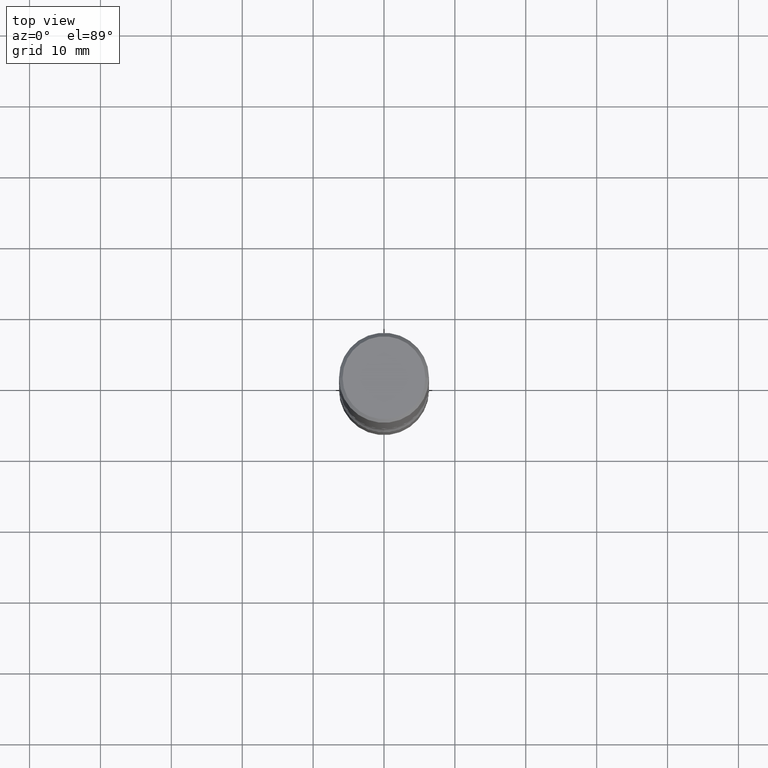
[diagram: clean part render]
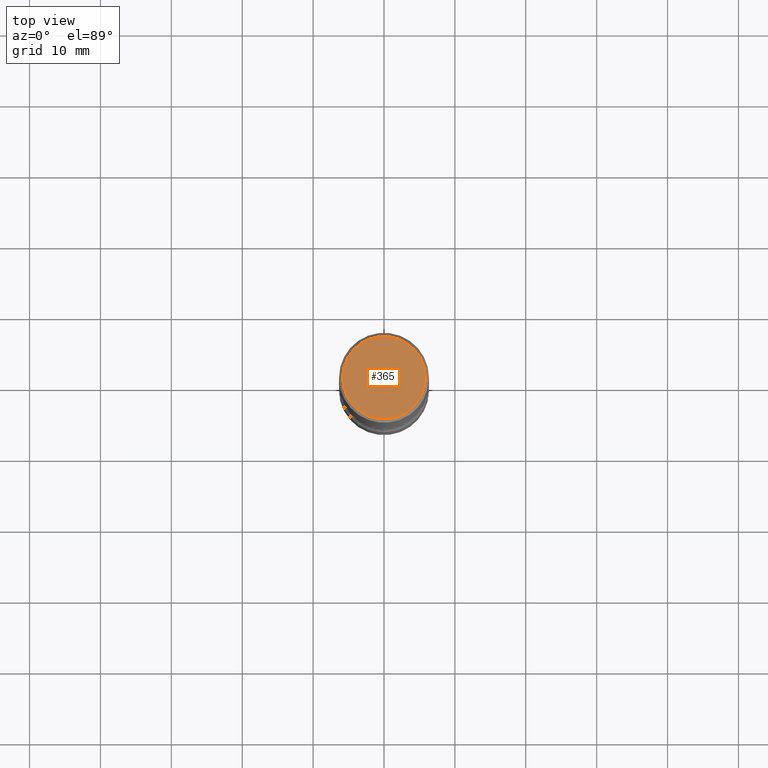
[diagram: same view with one face highlighted and labeled with its STEP entity id]
A machine part, top view. The second image highlights one B-rep face of the part: STEP entity #365.
In plain terms, the highlighted planar face has unit normal (0, -0, -1).
Its self-contained STEP definition (entity closure, byte-faithful):
#41 = CARTESIAN_POINT ( 'NONE',  ( -0.2299999999999998990, 1.640996229256271928E-15, -1.135408596578605420E-29 ) ) ;
#66 = CARTESIAN_POINT ( 'NONE',  ( 0.000000000000000000, 0.000000000000000000, 0.000000000000000000 ) ) ;
#107 = FACE_OUTER_BOUND ( 'NONE', #136, .T. ) ;
#133 = AXIS2_PLACEMENT_3D ( 'NONE', #203, #240, #332 ) ;
#136 = EDGE_LOOP ( 'NONE', ( #416, #214 ) ) ;
#186 = AXIS2_PLACEMENT_3D ( 'NONE', #66, #489, #498 ) ;
#203 = CARTESIAN_POINT ( 'NONE',  ( 0.000000000000000000, 0.000000000000000000, 0.000000000000000000 ) ) ;
#212 = EDGE_CURVE ( 'NONE', #443, #464, #308, .T. ) ;
#214 = ORIENTED_EDGE ( 'NONE', *, *, #285, .T. ) ;
#240 = DIRECTION ( 'NONE',  ( -2.445468806185136597E-29, 3.491481338843145583E-15, 1.000000000000000000 ) ) ;
#279 = CARTESIAN_POINT ( 'NONE',  ( 1.606081415867840476E-15, 0.2299999999999998990, -8.030407079339231961E-16 ) ) ;
#285 = EDGE_CURVE ( 'NONE', #464, #443, #359, .T. ) ;
#308 = CIRCLE ( 'NONE', #133, 0.2299999999999998990 ) ;
#332 = DIRECTION ( 'NONE',  ( 1.000000000000000000, -6.982962677686267499E-15, 4.876176775795936353E-29 ) ) ;
#359 = CIRCLE ( 'NONE', #186, 0.2299999999999998990 ) ;
#365 = ADVANCED_FACE ( 'NONE', ( #107 ), #368, .F. ) ;
#368 = PLANE ( 'NONE',  #548 ) ;
#416 = ORIENTED_EDGE ( 'NONE', *, *, #212, .T. ) ;
#443 = VERTEX_POINT ( 'NONE', #41 ) ;
#445 = DIRECTION ( 'NONE',  ( 2.438088387897960049E-29, -3.491481338843145188E-15, -1.000000000000000000 ) ) ;
#451 = DIRECTION ( 'NONE',  ( -1.000000000000000000, 6.982962677686265922E-15, -4.876176775795935793E-29 ) ) ;
#464 = VERTEX_POINT ( 'NONE', #554 ) ;
#489 = DIRECTION ( 'NONE',  ( -2.445468806185136597E-29, 3.491481338843145583E-15, 1.000000000000000000 ) ) ;
#498 = DIRECTION ( 'NONE',  ( 1.000000000000000000, -6.982962677686267499E-15, 4.876176775795936353E-29 ) ) ;
#548 = AXIS2_PLACEMENT_3D ( 'NONE', #279, #445, #451 ) ;
#554 = CARTESIAN_POINT ( 'NONE',  ( 0.2299999999999998990, -1.681434332853598617E-15, 1.149527484987432660E-29 ) ) ;